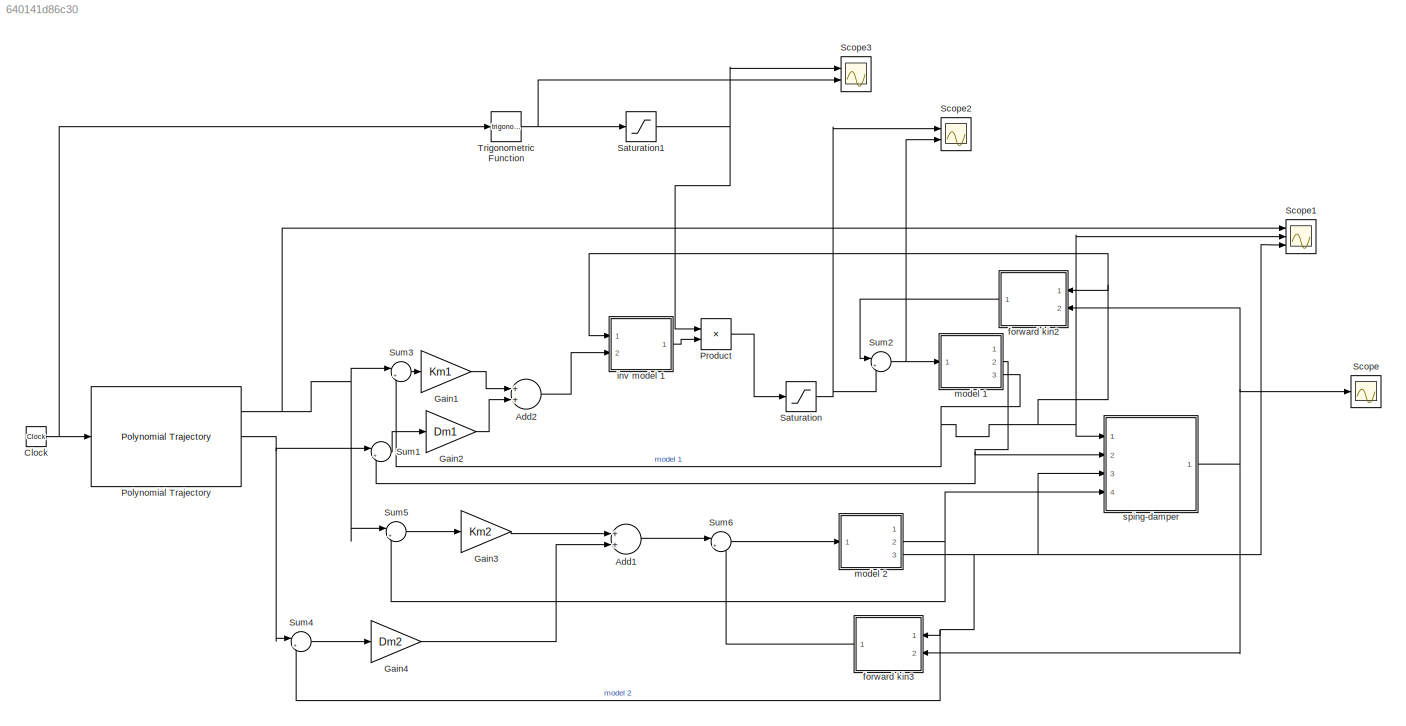
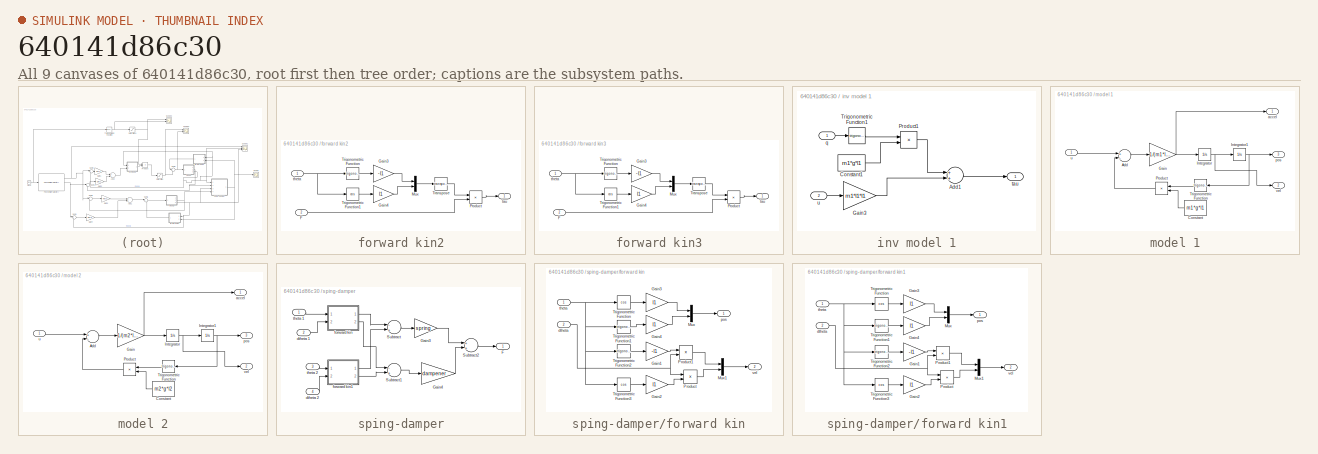
[diagram: thumbnail index - all 9 canvases of the model, root first then tree order]
MODEL slx_640141d86c30
KIND model
CONFIG AbsTol = auto
CONFIG EnableMultiTasking = off
CONFIG FixedStep = auto
CONFIG MaxStep = auto
CONFIG MinStep = auto
CONFIG RelTol = 1e-3
CONFIG SampleTimeConstraint = Unconstrained
CONFIG Solver = VariableStepAuto
CONFIG SolverName = VariableStepAuto
CONFIG StartTime = 0.0
CONFIG StopTime = 10.0
BLOCK [Sum] Add1
  InputSameDT = off
  OutDataTypeStr = Inherit: Inherit via internal rule
  Ports = [2, 1]
  SaturateOnIntegerOverflow = off
BLOCK [Sum] Add2
  InputSameDT = off
  OutDataTypeStr = Inherit: Inherit via internal rule
  Ports = [2, 1]
  SaturateOnIntegerOverflow = off
BLOCK [Clock] Clock
BLOCK [Gain] Gain1
  Gain = Km1
  OutDataTypeStr = Inherit: Inherit via internal rule
  ParamDataTypeStr = Inherit: Inherit via internal rule
  SaturateOnIntegerOverflow = off
BLOCK [Gain] Gain2
  Gain = Dm1
  OutDataTypeStr = Inherit: Inherit via internal rule
  ParamDataTypeStr = Inherit: Inherit via internal rule
  SaturateOnIntegerOverflow = off
BLOCK [Gain] Gain3
  Gain = Km2
  OutDataTypeStr = Inherit: Inherit via internal rule
  ParamDataTypeStr = Inherit: Inherit via internal rule
  SaturateOnIntegerOverflow = off
BLOCK [Gain] Gain4
  Gain = Dm2
  OutDataTypeStr = Inherit: Inherit via internal rule
  ParamDataTypeStr = Inherit: Inherit via internal rule
  SaturateOnIntegerOverflow = off
BLOCK [Reference] Polynomial Trajectory  REF=robotcorelib/Polynomial Trajectory
  Ports = [1, 3]
  SourceBlock = robotcorelib/Polynomial Trajectory
  SourceProductBaseCode = RO
  SourceProductName = Robotics System Toolbox
  SourceType = robotics.slcore.internal.block.PolyTrajSys
BLOCK [Product] Product
  InputSameDT = off
  OutDataTypeStr = Inherit: Inherit via internal rule
  Ports = [2, 1]
  RndMeth = Floor
  SaturateOnIntegerOverflow = off
BLOCK [Saturate] Saturation
  InputPortMap = u0
  LowerLimit = -1
  Ports = [1, 1]
  UpperLimit = 1
BLOCK [Saturate] Saturation1
  InputPortMap = u0
  LowerLimit = 0
  Ports = [1, 1]
  UpperLimit = 1
BLOCK [Scope] Scope
  Floating = off
  NumInputPorts = 1
  Ports = [1]
  ScopeSpecificationString = Simulink.scopes.TimeScopeBlockCfg('CurrentConfiguration', extmgr.ConfigurationSet(extmgr.Configuration('Core','General UI',true),extmgr.Configuration('Core','Source UI',true),extmgr.Configuration('Sources','WiredSimulink',true),extmgr.Configuration('Visuals','Time Domain',true,'SerializedDisplays',{struct('MinYLimReal','-10.37868','MaxYLimReal','4.61539','YLabelReal','','MinYLimMag','0.00000','Max...<+1381ch>
BLOCK [Scope] Scope1
  Floating = off
  NumInputPorts = 3
  Ports = [3]
  ScopeSpecificationString = Simulink.scopes.TimeScopeBlockCfg('CurrentConfiguration', extmgr.ConfigurationSet(extmgr.Configuration('Core','General UI',true),extmgr.Configuration('Core','Source UI',true),extmgr.Configuration('Sources','WiredSimulink',true,'DataLoggingVariableName','ScopeData1'),extmgr.Configuration('Visuals','Time Domain',true,'SerializedDisplays',{struct('MinYLimReal','-3.58239','MaxYLimReal','0.82558','YLab...<+1426ch>
BLOCK [Scope] Scope2
  Floating = off
  NumInputPorts = 2
  Ports = [2]
  ScopeSpecificationString = Simulink.scopes.TimeScopeBlockCfg('CurrentConfiguration', extmgr.ConfigurationSet(extmgr.Configuration('Core','General UI',true),extmgr.Configuration('Core','Source UI',true),extmgr.Configuration('Sources','WiredSimulink',true,'DataLoggingVariableName','ScopeData2'),extmgr.Configuration('Visuals','Time Domain',true,'SerializedDisplays',{struct('MinYLimReal','-11.52009','MaxYLimReal','5.83051','YLa...<+1406ch>
BLOCK [Scope] Scope3
  Floating = off
  NumInputPorts = 2
  Ports = [2]
  ScopeSpecificationString = Simulink.scopes.TimeScopeBlockCfg('CurrentConfiguration', extmgr.ConfigurationSet(extmgr.Configuration('Core','General UI',true),extmgr.Configuration('Core','Source UI',true),extmgr.Configuration('Sources','WiredSimulink',true,'DataLoggingVariableName','ScopeData3'),extmgr.Configuration('Visuals','Time Domain',true,'SerializedDisplays',{struct('MinYLimReal','-1.24869','MaxYLimReal','1.24897','YLab...<+1492ch>
BLOCK [Sum] Sum1
  IconShape = round
  InputSameDT = off
  Inputs = |+-
  OutDataTypeStr = Inherit: Inherit via internal rule
  Ports = [2, 1]
  SaturateOnIntegerOverflow = off
BLOCK [Sum] Sum2
  IconShape = round
  InputSameDT = off
  Inputs = |++
  OutDataTypeStr = Inherit: Inherit via internal rule
  Ports = [2, 1]
  SaturateOnIntegerOverflow = off
BLOCK [Sum] Sum3
  IconShape = round
  InputSameDT = off
  Inputs = |+-
  OutDataTypeStr = Inherit: Inherit via internal rule
  Ports = [2, 1]
  SaturateOnIntegerOverflow = off
BLOCK [Sum] Sum4
  IconShape = round
  InputSameDT = off
  Inputs = |+-
  OutDataTypeStr = Inherit: Inherit via internal rule
  Ports = [2, 1]
  SaturateOnIntegerOverflow = off
BLOCK [Sum] Sum5
  IconShape = round
  InputSameDT = off
  Inputs = |+-
  OutDataTypeStr = Inherit: Inherit via internal rule
  Ports = [2, 1]
  SaturateOnIntegerOverflow = off
BLOCK [Sum] Sum6
  IconShape = round
  InputSameDT = off
  Inputs = |+-
  OutDataTypeStr = Inherit: Inherit via internal rule
  Ports = [2, 1]
  SaturateOnIntegerOverflow = off
BLOCK [Trigonometry] Trigonometric Function
  Ports = [1, 1]
BLOCK [SubSystem] forward kin2
  Ports = [2, 1]
  RequestExecContextInheritance = off
BLOCK [Inport] forward kin2/F
  IconDisplay = Port number
  Port = 2
BLOCK [Gain] forward kin2/Gain3
  Gain = -l1
  OutDataTypeStr = Inherit: Inherit via internal rule
  ParamDataTypeStr = Inherit: Inherit via internal rule
  SaturateOnIntegerOverflow = off
BLOCK [Gain] forward kin2/Gain4
  Gain = l1
  OutDataTypeStr = Inherit: Inherit via internal rule
  ParamDataTypeStr = Inherit: Inherit via internal rule
  SaturateOnIntegerOverflow = off
BLOCK [Mux] forward kin2/Mux
  DisplayOption = bar
  Inputs = 2
  Ports = [2, 1]
BLOCK [Product] forward kin2/Product
  InputSameDT = off
  Multiplication = Matrix(*)
  OutDataTypeStr = Inherit: Inherit via internal rule
  Ports = [2, 1]
  RndMeth = Floor
  SaturateOnIntegerOverflow = off
BLOCK [Math] forward kin2/Transpose
  Operator = transpose
  Ports = [1, 1]
  SignedPower = off
BLOCK [Trigonometry] forward kin2/Trigonometric Function
  Ports = [1, 1]
BLOCK [Trigonometry] forward kin2/Trigonometric Function1
  Operator = cos
  Ports = [1, 1]
BLOCK [Outport] forward kin2/tau 
  IconDisplay = Port number
BLOCK [Inport] forward kin2/theta 
  IconDisplay = Port number
BLOCK [SubSystem] forward kin3
  Ports = [2, 1]
  RequestExecContextInheritance = off
BLOCK [Inport] forward kin3/F
  IconDisplay = Port number
  Port = 2
BLOCK [Gain] forward kin3/Gain3
  Gain = -l1
  OutDataTypeStr = Inherit: Inherit via internal rule
  ParamDataTypeStr = Inherit: Inherit via internal rule
  SaturateOnIntegerOverflow = off
BLOCK [Gain] forward kin3/Gain4
  Gain = l1
  OutDataTypeStr = Inherit: Inherit via internal rule
  ParamDataTypeStr = Inherit: Inherit via internal rule
  SaturateOnIntegerOverflow = off
BLOCK [Mux] forward kin3/Mux
  DisplayOption = bar
  Inputs = 2
  Ports = [2, 1]
BLOCK [Product] forward kin3/Product
  InputSameDT = off
  Multiplication = Matrix(*)
  OutDataTypeStr = Inherit: Inherit via internal rule
  Ports = [2, 1]
  RndMeth = Floor
  SaturateOnIntegerOverflow = off
BLOCK [Math] forward kin3/Transpose
  Operator = transpose
  Ports = [1, 1]
  SignedPower = off
BLOCK [Trigonometry] forward kin3/Trigonometric Function
  Ports = [1, 1]
BLOCK [Trigonometry] forward kin3/Trigonometric Function1
  Operator = cos
  Ports = [1, 1]
BLOCK [Outport] forward kin3/tau 
  IconDisplay = Port number
BLOCK [Inport] forward kin3/theta 
  IconDisplay = Port number
BLOCK [SubSystem] inv model 1
  Ports = [2, 1]
  RequestExecContextInheritance = off
BLOCK [Sum] inv model 1/Add1
  InputSameDT = off
  OutDataTypeStr = Inherit: Inherit via internal rule
  Ports = [2, 1]
  SaturateOnIntegerOverflow = off
BLOCK [Constant] inv model 1/Constant1
  Value = m1*g*l1
BLOCK [Gain] inv model 1/Gain3
  Gain = m1*l1*l1
  OutDataTypeStr = Inherit: Inherit via internal rule
  ParamDataTypeStr = Inherit: Inherit via internal rule
  SaturateOnIntegerOverflow = off
BLOCK [Product] inv model 1/Product1
  InputSameDT = off
  OutDataTypeStr = Inherit: Inherit via internal rule
  Ports = [2, 1]
  RndMeth = Floor
  SaturateOnIntegerOverflow = off
BLOCK [Trigonometry] inv model 1/Trigonometric Function1
  Ports = [1, 1]
BLOCK [Inport] inv model 1/q
  IconDisplay = Port number
BLOCK [Outport] inv model 1/tau 
  IconDisplay = Port number
BLOCK [Inport] inv model 1/u 
  IconDisplay = Port number
  Port = 2
BLOCK [SubSystem] model 1
  Ports = [1, 3]
  RequestExecContextInheritance = off
BLOCK [Sum] model 1/Add
  InputSameDT = off
  Inputs = +-
  OutDataTypeStr = Inherit: Inherit via internal rule
  Ports = [2, 1]
  SaturateOnIntegerOverflow = off
BLOCK [Constant] model 1/Constant
  Value = m1*g*l1
BLOCK [Gain] model 1/Gain
  Gain = 1/(m1*l1*l1)
  OutDataTypeStr = Inherit: Inherit via internal rule
  ParamDataTypeStr = Inherit: Inherit via internal rule
  SaturateOnIntegerOverflow = off
BLOCK [Integrator] model 1/Integrator
  Ports = [1, 1]
BLOCK [Integrator] model 1/Integrator1
  InitialCondition = -pi
  Ports = [1, 1]
BLOCK [Product] model 1/Product
  InputSameDT = off
  OutDataTypeStr = Inherit: Inherit via internal rule
  Ports = [2, 1]
  RndMeth = Floor
  SaturateOnIntegerOverflow = off
BLOCK [Trigonometry] model 1/Trigonometric Function
  Ports = [1, 1]
BLOCK [Outport] model 1/accel
  IconDisplay = Port number
BLOCK [Outport] model 1/pos
  IconDisplay = Port number
  Port = 3
BLOCK [Inport] model 1/u 
  IconDisplay = Port number
BLOCK [Outport] model 1/vel
  IconDisplay = Port number
  Port = 2
BLOCK [SubSystem] model 2
  Ports = [1, 3]
  RequestExecContextInheritance = off
BLOCK [Sum] model 2/Add
  InputSameDT = off
  Inputs = +-
  OutDataTypeStr = Inherit: Inherit via internal rule
  Ports = [2, 1]
  SaturateOnIntegerOverflow = off
BLOCK [Constant] model 2/Constant
  Value = m2*g*l2
BLOCK [Gain] model 2/Gain
  Gain = 1/(m2*l2*l2)
  OutDataTypeStr = Inherit: Inherit via internal rule
  ParamDataTypeStr = Inherit: Inherit via internal rule
  SaturateOnIntegerOverflow = off
BLOCK [Integrator] model 2/Integrator
  Ports = [1, 1]
BLOCK [Integrator] model 2/Integrator1
  InitialCondition = -pi
  Ports = [1, 1]
BLOCK [Product] model 2/Product
  InputSameDT = off
  OutDataTypeStr = Inherit: Inherit via internal rule
  Ports = [2, 1]
  RndMeth = Floor
  SaturateOnIntegerOverflow = off
BLOCK [Trigonometry] model 2/Trigonometric Function
  Ports = [1, 1]
BLOCK [Outport] model 2/accel
  IconDisplay = Port number
BLOCK [Outport] model 2/pos
  IconDisplay = Port number
  Port = 3
BLOCK [Inport] model 2/u 
  IconDisplay = Port number
BLOCK [Outport] model 2/vel
  IconDisplay = Port number
  Port = 2
BLOCK [SubSystem] sping-damper
  Ports = [4, 1]
  RequestExecContextInheritance = off
BLOCK [Outport] sping-damper/F
  IconDisplay = Port number
BLOCK [Gain] sping-damper/Gain3
  Gain = spring
  OutDataTypeStr = Inherit: Inherit via internal rule
  ParamDataTypeStr = Inherit: Inherit via internal rule
  SaturateOnIntegerOverflow = off
BLOCK [Gain] sping-damper/Gain4
  Gain = dampener
  OutDataTypeStr = Inherit: Inherit via internal rule
  ParamDataTypeStr = Inherit: Inherit via internal rule
  SaturateOnIntegerOverflow = off
BLOCK [Sum] sping-damper/Subtract
  InputSameDT = off
  Inputs = -+
  OutDataTypeStr = Inherit: Inherit via internal rule
  Ports = [2, 1]
  SaturateOnIntegerOverflow = off
BLOCK [Sum] sping-damper/Subtract1
  InputSameDT = off
  Inputs = -+
  OutDataTypeStr = Inherit: Inherit via internal rule
  Ports = [2, 1]
  SaturateOnIntegerOverflow = off
BLOCK [Sum] sping-damper/Subtract2
  InputSameDT = off
  OutDataTypeStr = Inherit: Inherit via internal rule
  Ports = [2, 1]
  SaturateOnIntegerOverflow = off
BLOCK [Inport] sping-damper/dtheta 1
  IconDisplay = Port number
  Port = 2
BLOCK [Inport] sping-damper/dtheta 2
  IconDisplay = Port number
  Port = 4
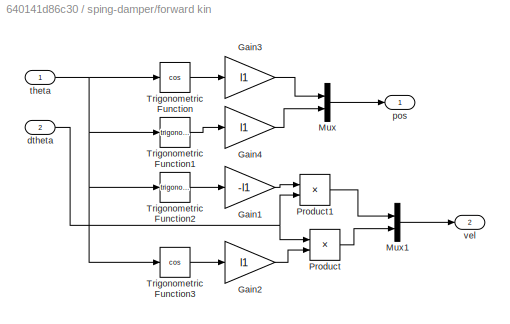
BLOCK [SubSystem] sping-damper/forward kin
  Ports = [2, 2]
  RequestExecContextInheritance = off
BLOCK [Gain] sping-damper/forward kin/Gain1
  Gain = -l1
  OutDataTypeStr = Inherit: Inherit via internal rule
  ParamDataTypeStr = Inherit: Inherit via internal rule
  SaturateOnIntegerOverflow = off
BLOCK [Gain] sping-damper/forward kin/Gain2
  Gain = l1
  OutDataTypeStr = Inherit: Inherit via internal rule
  ParamDataTypeStr = Inherit: Inherit via internal rule
  SaturateOnIntegerOverflow = off
BLOCK [Gain] sping-damper/forward kin/Gain3
  Gain = l1
  OutDataTypeStr = Inherit: Inherit via internal rule
  ParamDataTypeStr = Inherit: Inherit via internal rule
  SaturateOnIntegerOverflow = off
BLOCK [Gain] sping-damper/forward kin/Gain4
  Gain = l1
  OutDataTypeStr = Inherit: Inherit via internal rule
  ParamDataTypeStr = Inherit: Inherit via internal rule
  SaturateOnIntegerOverflow = off
BLOCK [Mux] sping-damper/forward kin/Mux
  DisplayOption = bar
  Inputs = 2
  Ports = [2, 1]
BLOCK [Mux] sping-damper/forward kin/Mux1
  DisplayOption = bar
  Inputs = 2
  Ports = [2, 1]
BLOCK [Product] sping-damper/forward kin/Product
  InputSameDT = off
  OutDataTypeStr = Inherit: Inherit via internal rule
  Ports = [2, 1]
  RndMeth = Floor
  SaturateOnIntegerOverflow = off
BLOCK [Product] sping-damper/forward kin/Product1
  InputSameDT = off
  OutDataTypeStr = Inherit: Inherit via internal rule
  Ports = [2, 1]
  RndMeth = Floor
  SaturateOnIntegerOverflow = off
BLOCK [Trigonometry] sping-damper/forward kin/Trigonometric Function
  Operator = cos
  Ports = [1, 1]
BLOCK [Trigonometry] sping-damper/forward kin/Trigonometric Function1
  Ports = [1, 1]
BLOCK [Trigonometry] sping-damper/forward kin/Trigonometric Function2
  Ports = [1, 1]
BLOCK [Trigonometry] sping-damper/forward kin/Trigonometric Function3
  Operator = cos
  Ports = [1, 1]
BLOCK [Inport] sping-damper/forward kin/dtheta 
  IconDisplay = Port number
  Port = 2
BLOCK [Outport] sping-damper/forward kin/pos
  IconDisplay = Port number
BLOCK [Inport] sping-damper/forward kin/theta 
  IconDisplay = Port number
BLOCK [Outport] sping-damper/forward kin/vel
  IconDisplay = Port number
  Port = 2
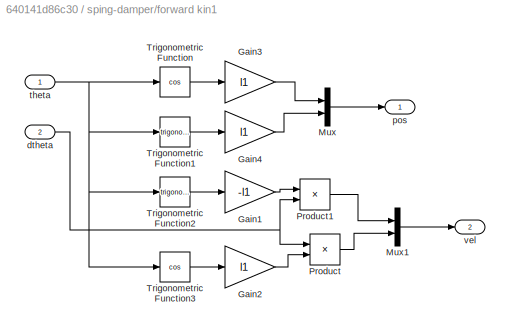
BLOCK [SubSystem] sping-damper/forward kin1
  Ports = [2, 2]
  RequestExecContextInheritance = off
BLOCK [Gain] sping-damper/forward kin1/Gain1
  Gain = -l1
  OutDataTypeStr = Inherit: Inherit via internal rule
  ParamDataTypeStr = Inherit: Inherit via internal rule
  SaturateOnIntegerOverflow = off
BLOCK [Gain] sping-damper/forward kin1/Gain2
  Gain = l1
  OutDataTypeStr = Inherit: Inherit via internal rule
  ParamDataTypeStr = Inherit: Inherit via internal rule
  SaturateOnIntegerOverflow = off
BLOCK [Gain] sping-damper/forward kin1/Gain3
  Gain = l1
  OutDataTypeStr = Inherit: Inherit via internal rule
  ParamDataTypeStr = Inherit: Inherit via internal rule
  SaturateOnIntegerOverflow = off
BLOCK [Gain] sping-damper/forward kin1/Gain4
  Gain = l1
  OutDataTypeStr = Inherit: Inherit via internal rule
  ParamDataTypeStr = Inherit: Inherit via internal rule
  SaturateOnIntegerOverflow = off
BLOCK [Mux] sping-damper/forward kin1/Mux
  DisplayOption = bar
  Inputs = 2
  Ports = [2, 1]
BLOCK [Mux] sping-damper/forward kin1/Mux1
  DisplayOption = bar
  Inputs = 2
  Ports = [2, 1]
BLOCK [Product] sping-damper/forward kin1/Product
  InputSameDT = off
  OutDataTypeStr = Inherit: Inherit via internal rule
  Ports = [2, 1]
  RndMeth = Floor
  SaturateOnIntegerOverflow = off
BLOCK [Product] sping-damper/forward kin1/Product1
  InputSameDT = off
  OutDataTypeStr = Inherit: Inherit via internal rule
  Ports = [2, 1]
  RndMeth = Floor
  SaturateOnIntegerOverflow = off
BLOCK [Trigonometry] sping-damper/forward kin1/Trigonometric Function
  Operator = cos
  Ports = [1, 1]
BLOCK [Trigonometry] sping-damper/forward kin1/Trigonometric Function1
  Ports = [1, 1]
BLOCK [Trigonometry] sping-damper/forward kin1/Trigonometric Function2
  Ports = [1, 1]
BLOCK [Trigonometry] sping-damper/forward kin1/Trigonometric Function3
  Operator = cos
  Ports = [1, 1]
BLOCK [Inport] sping-damper/forward kin1/dtheta 
  IconDisplay = Port number
  Port = 2
BLOCK [Outport] sping-damper/forward kin1/pos
  IconDisplay = Port number
BLOCK [Inport] sping-damper/forward kin1/theta 
  IconDisplay = Port number
BLOCK [Outport] sping-damper/forward kin1/vel
  IconDisplay = Port number
  Port = 2
BLOCK [Inport] sping-damper/theta 1
  IconDisplay = Port number
BLOCK [Inport] sping-damper/theta 2
  IconDisplay = Port number
  Port = 3
LINE Add1:1 -> Sum6:1
LINE Add2:1 -> inv model 1:2
NET Clock:1 -> Polynomial Trajectory:1, Trigonometric Function:1
LINE Gain1:1 -> Add2:1
LINE Gain2:1 -> Add2:2
LINE Gain3:1 -> Add1:1
LINE Gain4:1 -> Add1:2
NET Polynomial Trajectory:1 -> Scope1:1, Sum3:1, Sum5:1
NET Polynomial Trajectory:2 -> Sum1:1, Sum4:1
LINE Product:1 -> Saturation:1
NET Saturation1:1 -> Product:1, Scope3:1
NET Saturation:1 -> Scope2:1, Sum2:2
LINE Sum1:1 -> Gain2:1
NET Sum2:1 -> Scope2:2, model 1:1
LINE Sum3:1 -> Gain1:1
LINE Sum4:1 -> Gain4:1
LINE Sum5:1 -> Gain3:1
LINE Sum6:1 -> model 2:1
NET Trigonometric Function:1 -> Saturation1:1, Scope3:2
LINE forward kin2/F:1 -> forward kin2/Product:2
LINE forward kin2/Gain3:1 -> forward kin2/Mux:1
LINE forward kin2/Gain4:1 -> forward kin2/Mux:2
LINE forward kin2/Mux:1 -> forward kin2/Transpose:1
LINE forward kin2/Product:1 -> forward kin2/tau :1
LINE forward kin2/Transpose:1 -> forward kin2/Product:1
LINE forward kin2/Trigonometric Function1:1 -> forward kin2/Gain4:1
LINE forward kin2/Trigonometric Function:1 -> forward kin2/Gain3:1
NET forward kin2/theta :1 -> forward kin2/Trigonometric Function1:1, forward kin2/Trigonometric Function:1
LINE forward kin2:1 -> Sum2:1
LINE forward kin3/F:1 -> forward kin3/Product:2
LINE forward kin3/Gain3:1 -> forward kin3/Mux:1
LINE forward kin3/Gain4:1 -> forward kin3/Mux:2
LINE forward kin3/Mux:1 -> forward kin3/Transpose:1
LINE forward kin3/Product:1 -> forward kin3/tau :1
LINE forward kin3/Transpose:1 -> forward kin3/Product:1
LINE forward kin3/Trigonometric Function1:1 -> forward kin3/Gain4:1
LINE forward kin3/Trigonometric Function:1 -> forward kin3/Gain3:1
NET forward kin3/theta :1 -> forward kin3/Trigonometric Function1:1, forward kin3/Trigonometric Function:1
LINE forward kin3:1 -> Sum6:2
LINE inv model 1/Add1:1 -> inv model 1/tau :1
LINE inv model 1/Constant1:1 -> inv model 1/Product1:2
LINE inv model 1/Gain3:1 -> inv model 1/Add1:2
LINE inv model 1/Product1:1 -> inv model 1/Add1:1
LINE inv model 1/Trigonometric Function1:1 -> inv model 1/Product1:1
LINE inv model 1/q:1 -> inv model 1/Trigonometric Function1:1
LINE inv model 1/u :1 -> inv model 1/Gain3:1
LINE inv model 1:1 -> Product:2
LINE model 1/Add:1 -> model 1/Gain:1
LINE model 1/Constant:1 -> model 1/Product:2
NET model 1/Gain:1 -> model 1/Integrator:1, model 1/accel:1
NET model 1/Integrator1:1 -> model 1/Trigonometric Function:1, model 1/pos:1
NET model 1/Integrator:1 -> model 1/Integrator1:1, model 1/vel:1
LINE model 1/Product:1 -> model 1/Add:2
LINE model 1/Trigonometric Function:1 -> model 1/Product:1
LINE model 1/u :1 -> model 1/Add:1
NET model 1:2 -> Sum1:2, sping-damper:2
NET model 1:3 -> Scope1:2, Sum3:2, forward kin2:1, inv model 1:1, sping-damper:1
LINE model 2/Add:1 -> model 2/Gain:1
LINE model 2/Constant:1 -> model 2/Product:2
NET model 2/Gain:1 -> model 2/Integrator:1, model 2/accel:1
NET model 2/Integrator1:1 -> model 2/Trigonometric Function:1, model 2/pos:1
NET model 2/Integrator:1 -> model 2/Integrator1:1, model 2/vel:1
LINE model 2/Product:1 -> model 2/Add:2
LINE model 2/Trigonometric Function:1 -> model 2/Product:1
LINE model 2/u :1 -> model 2/Add:1
NET model 2:2 -> Sum5:2, sping-damper:4
NET model 2:3 -> Scope1:3, Sum4:2, forward kin3:1, sping-damper:3
LINE sping-damper/Gain3:1 -> sping-damper/Subtract2:1
LINE sping-damper/Gain4:1 -> sping-damper/Subtract2:2
LINE sping-damper/Subtract1:1 -> sping-damper/Gain4:1
LINE sping-damper/Subtract2:1 -> sping-damper/F:1
LINE sping-damper/Subtract:1 -> sping-damper/Gain3:1
LINE sping-damper/dtheta 1:1 -> sping-damper/forward kin:2
LINE sping-damper/dtheta 2:1 -> sping-damper/forward kin1:2
LINE sping-damper/forward kin/Gain1:1 -> sping-damper/forward kin/Product1:1
LINE sping-damper/forward kin/Gain2:1 -> sping-damper/forward kin/Product:2
LINE sping-damper/forward kin/Gain3:1 -> sping-damper/forward kin/Mux:1
LINE sping-damper/forward kin/Gain4:1 -> sping-damper/forward kin/Mux:2
LINE sping-damper/forward kin/Mux1:1 -> sping-damper/forward kin/vel:1
LINE sping-damper/forward kin/Mux:1 -> sping-damper/forward kin/pos:1
LINE sping-damper/forward kin/Product1:1 -> sping-damper/forward kin/Mux1:1
LINE sping-damper/forward kin/Product:1 -> sping-damper/forward kin/Mux1:2
LINE sping-damper/forward kin/Trigonometric Function1:1 -> sping-damper/forward kin/Gain4:1
LINE sping-damper/forward kin/Trigonometric Function2:1 -> sping-damper/forward kin/Gain1:1
LINE sping-damper/forward kin/Trigonometric Function3:1 -> sping-damper/forward kin/Gain2:1
LINE sping-damper/forward kin/Trigonometric Function:1 -> sping-damper/forward kin/Gain3:1
NET sping-damper/forward kin/dtheta :1 -> sping-damper/forward kin/Product1:2, sping-damper/forward kin/Product:1
NET sping-damper/forward kin/theta :1 -> sping-damper/forward kin/Trigonometric Function1:1, sping-damper/forward kin/Trigonometric Function2:1, sping-damper/forward kin/Trigonometric Function3:1, sping-damper/forward kin/Trigonometric Function:1
LINE sping-damper/forward kin1/Gain1:1 -> sping-damper/forward kin1/Product1:1
LINE sping-damper/forward kin1/Gain2:1 -> sping-damper/forward kin1/Product:2
LINE sping-damper/forward kin1/Gain3:1 -> sping-damper/forward kin1/Mux:1
LINE sping-damper/forward kin1/Gain4:1 -> sping-damper/forward kin1/Mux:2
LINE sping-damper/forward kin1/Mux1:1 -> sping-damper/forward kin1/vel:1
LINE sping-damper/forward kin1/Mux:1 -> sping-damper/forward kin1/pos:1
LINE sping-damper/forward kin1/Product1:1 -> sping-damper/forward kin1/Mux1:1
LINE sping-damper/forward kin1/Product:1 -> sping-damper/forward kin1/Mux1:2
LINE sping-damper/forward kin1/Trigonometric Function1:1 -> sping-damper/forward kin1/Gain4:1
LINE sping-damper/forward kin1/Trigonometric Function2:1 -> sping-damper/forward kin1/Gain1:1
LINE sping-damper/forward kin1/Trigonometric Function3:1 -> sping-damper/forward kin1/Gain2:1
LINE sping-damper/forward kin1/Trigonometric Function:1 -> sping-damper/forward kin1/Gain3:1
NET sping-damper/forward kin1/dtheta :1 -> sping-damper/forward kin1/Product1:2, sping-damper/forward kin1/Product:1
NET sping-damper/forward kin1/theta :1 -> sping-damper/forward kin1/Trigonometric Function1:1, sping-damper/forward kin1/Trigonometric Function2:1, sping-damper/forward kin1/Trigonometric Function3:1, sping-damper/forward kin1/Trigonometric Function:1
LINE sping-damper/forward kin1:1 -> sping-damper/Subtract:2
LINE sping-damper/forward kin1:2 -> sping-damper/Subtract1:2
LINE sping-damper/forward kin:1 -> sping-damper/Subtract:1
LINE sping-damper/forward kin:2 -> sping-damper/Subtract1:1
LINE sping-damper/theta 1:1 -> sping-damper/forward kin:1
LINE sping-damper/theta 2:1 -> sping-damper/forward kin1:1
NET sping-damper:1 -> Scope:1, forward kin2:2, forward kin3:2
note: NET lines group one-source signal fan-out (src -> all destinations, sorted); 1:1 wires keep LINE
